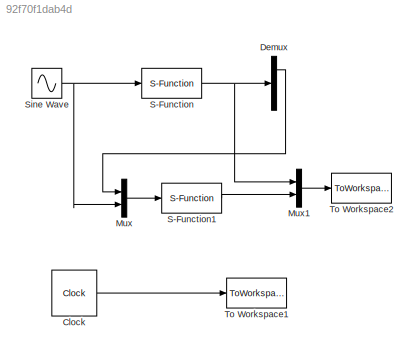
MODEL slx_92f70f1dab4d
KIND model
CONFIG AbsTol = auto
CONFIG FixedStep = auto
CONFIG MaxStep = auto
CONFIG MinStep = auto
CONFIG RelTol = 1e-3
CONFIG SampleTimeConstraint = Unconstrained
CONFIG Solver = ode45
CONFIG SolverMode = Auto
CONFIG SolverName = ode45
CONFIG StartTime = 0.0
CONFIG StopTime = 30
BLOCK [Clock] Clock
  DisplayTime = on
BLOCK [Demux] Demux
  DisplayOption = bar
  Outputs = 3
  Ports = [1, 3]
BLOCK [Mux] Mux
  DisplayOption = bar
  Inputs = 2
  Ports = [2, 1]
BLOCK [Mux] Mux1
  DisplayOption = bar
  Inputs = 2
  Ports = [2, 1]
BLOCK [S-Function] S-Function
  FunctionName = chap8_4plant
  Ports = [1, 1]
BLOCK [S-Function] S-Function1
  FunctionName = chap8_4eso
  Ports = [1, 1]
BLOCK [Sin] Sine Wave
  Frequency = 2*pi/7
  Ports = [0, 1]
  SampleTime = 0
BLOCK [ToWorkspace] To Workspace1
  FixptAsFi = on
  MaxDataPoints = inf
  Ports = [1]
  SampleTime = -1
  Save2DSignal = 3-D array (concatenate along third dimension)
  VariableName = t
BLOCK [ToWorkspace] To Workspace2
  FixptAsFi = on
  MaxDataPoints = inf
  Ports = [1]
  SampleTime = -1
  Save2DSignal = 3-D array (concatenate along third dimension)
  VariableName = x
LINE Clock:1 -> To Workspace1:1
LINE Demux:1 -> Mux:1
LINE Mux1:1 -> To Workspace2:1
LINE Mux:1 -> S-Function1:1
LINE S-Function1:1 -> Mux1:2
NET S-Function:1 -> Demux:1, Mux1:1
NET Sine Wave:1 -> Mux:2, S-Function:1
note: NET lines group one-source signal fan-out (src -> all destinations, sorted); 1:1 wires keep LINE
